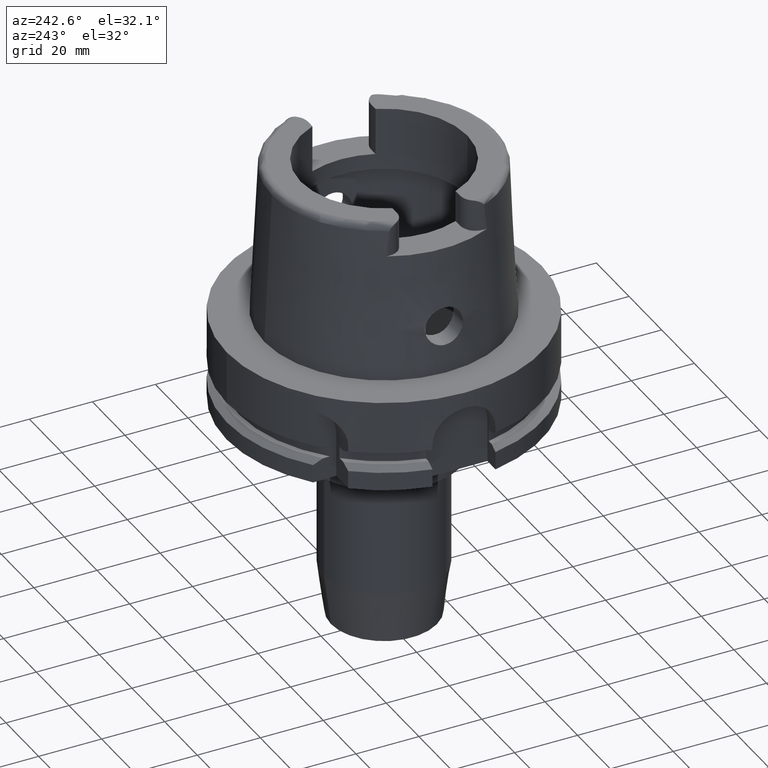
[diagram: clean part render]
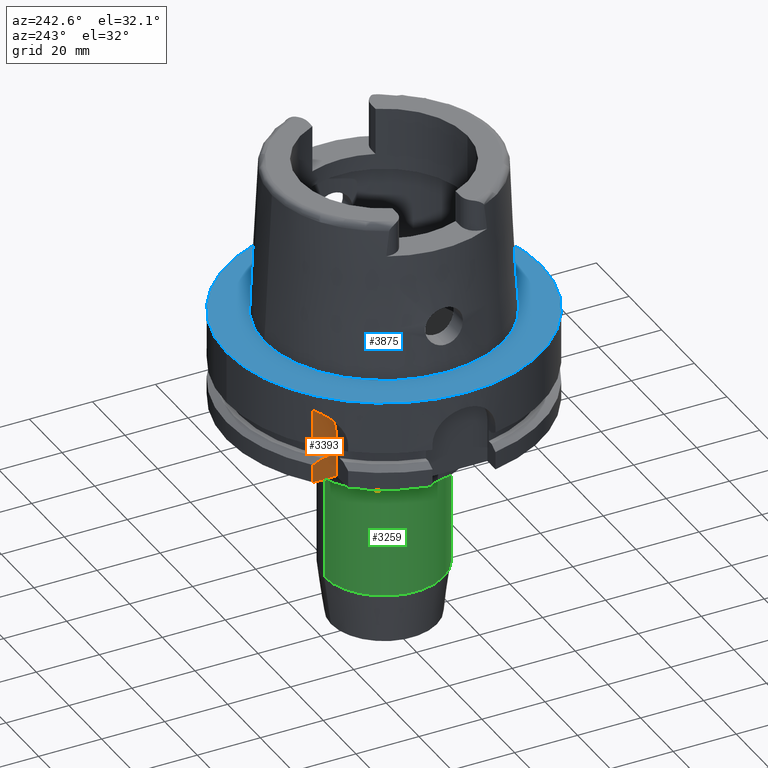
[diagram: same view with three faces highlighted in distinct colors, each labeled with its STEP entity id]
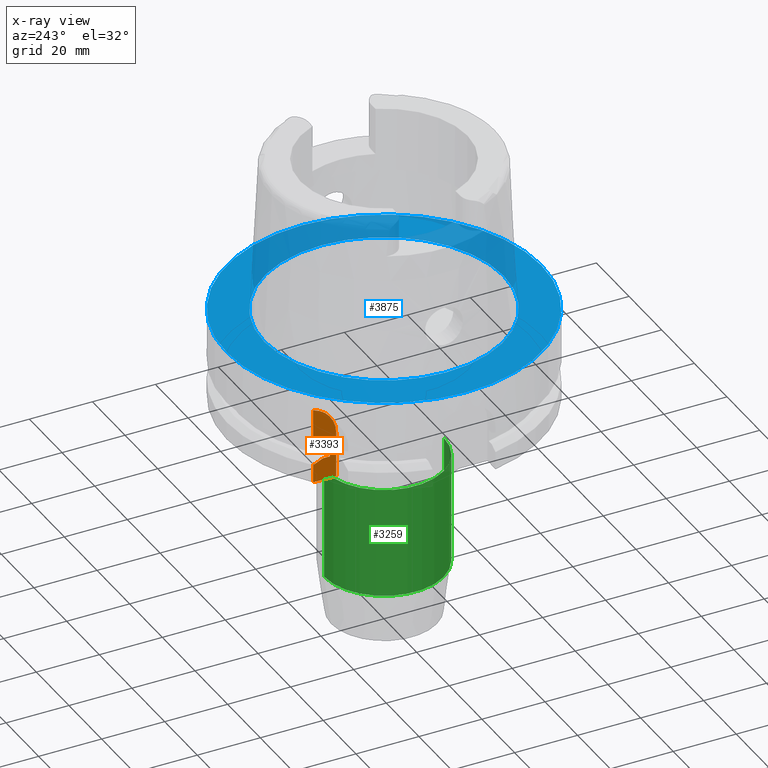
[diagram: x-ray of the same camera — body ghosted, the three highlighted faces saturated]
A machine part, auxiliary view with three faces highlighted in distinct colors.
The next image is the same camera in x-ray (body ghosted, the three faces saturated) — at least one of them is partly hidden behind the body in this view.
Their STEP definitions:

[orange] entity #3393 — the highlighted planar face has unit normal (1, 0, 0).
#1230=DIRECTION('',(4.798503851106E-14,1.E0,0.E0));
#1231=VECTOR('',#1230,7.329756630709E0);
#1232=CARTESIAN_POINT('',(-3.15E1,3.15E1,-2.9E1));
#1233=LINE('',#1232,#1231);
#1237=DIRECTION('',(-4.433903906541E-7,9.999999999999E-1,9.391792532212E-14));
#1238=VECTOR('',#1237,2.194015601002E0);
#1239=CARTESIAN_POINT('',(-3.15E1,3.352238058372E1,-1.8125E1));
#1240=LINE('',#1239,#1238);
#1244=CARTESIAN_POINT('',(-3.150000097281E1,3.571639618472E1,-1.8125E1));
#1245=CARTESIAN_POINT('',(-3.150000097281E1,3.606333863821E1,
-1.797477179943E1));
#1246=CARTESIAN_POINT('',(-3.150000002064E1,3.675646915239E1,
-1.767266204693E1));
#1247=CARTESIAN_POINT('',(-3.149999846856E1,3.779429574907E1,
-1.721518165955E1));
#1248=CARTESIAN_POINT('',(-3.150000355959E1,3.848477495946E1,
-1.690706900025E1));
#1249=CARTESIAN_POINT('',(-3.150000355959E1,3.882975374305E1,
-1.675239179145E1));
#1254=CARTESIAN_POINT('',(-3.15E1,4.15E1,-1.463689785921E1));
#1255=DIRECTION('',(1.E0,0.E0,0.E0));
#1256=DIRECTION('',(0.E0,-2.670243369290E-1,9.636897859206E-1));
#1257=AXIS2_PLACEMENT_3D('',#1254,#1255,#1256);
#1262=DIRECTION('',(6.188494047475E-7,5.020316378014E-7,-9.999999999997E-1));
#1263=VECTOR('',#1262,5.752391791881E0);
#1264=CARTESIAN_POINT('',(-3.150000355986E1,3.882975374283E1,
-2.324760820812E1));
#1265=LINE('',#1264,#1263);
#1427=DIRECTION('',(0.E0,0.E0,1.E0));
#1428=VECTOR('',#1427,1.436310214079E1);
#1429=CARTESIAN_POINT('',(-3.15E1,3.15E1,-2.9E1));
#1430=LINE('',#1429,#1428);
#1458=DIRECTION('',(-3.028823767049E-7,-2.457085509676E-7,-9.999999999999E-1));
#1459=VECTOR('',#1458,1.175239179145E1);
#1460=CARTESIAN_POINT('',(-3.15E1,3.882975663071E1,-5.000000000003E0));
#1461=LINE('',#1460,#1459);
#1578=DIRECTION('',(0.E0,0.E0,-1.E0));
#1579=VECTOR('',#1578,3.75E0);
#1580=CARTESIAN_POINT('',(-3.15E1,3.352238058372E1,-1.8125E1));
#1581=LINE('',#1580,#1579);
#1592=DIRECTION('',(-4.434271693799E-7,9.999999999999E-1,-9.229865077722E-14));
#1593=VECTOR('',#1592,2.194015600297E0);
#1594=CARTESIAN_POINT('',(-3.15E1,3.352238058372E1,-2.1875E1));
#1595=LINE('',#1594,#1593);
#1631=CARTESIAN_POINT('',(-3.150000097289E1,3.571639618402E1,-2.1875E1));
#1632=CARTESIAN_POINT('',(-3.150000097289E1,3.605789002737E1,
-2.202286891912E1));
#1633=CARTESIAN_POINT('',(-3.150000002063E1,3.674380017621E1,
-2.232173054124E1));
#1634=CARTESIAN_POINT('',(-3.149999846845E1,3.778158713267E1,
-2.277929841516E1));
#1635=CARTESIAN_POINT('',(-3.150000355986E1,3.847935690318E1,
-2.309050172011E1));
#1636=CARTESIAN_POINT('',(-3.150000355986E1,3.882975374283E1,
-2.324760820812E1));
#2346=CARTESIAN_POINT('',(-3.15E1,3.15E1,-2.9E1));
#2347=CARTESIAN_POINT('',(-3.15E1,3.882975663071E1,-2.9E1));
#2348=VERTEX_POINT('',#2346);
#2349=VERTEX_POINT('',#2347);
#2372=CARTESIAN_POINT('',(-3.150000355986E1,3.882975374283E1,
-2.324760820812E1));
#2373=VERTEX_POINT('',#2372);
#2374=VERTEX_POINT('',#1631);
#2375=CARTESIAN_POINT('',(-3.15E1,3.352238058372E1,-2.1875E1));
#2376=VERTEX_POINT('',#2375);
#2377=CARTESIAN_POINT('',(-3.15E1,3.352238058372E1,-1.8125E1));
#2378=VERTEX_POINT('',#2377);
#2379=CARTESIAN_POINT('',(-3.150000097281E1,3.571639618472E1,-1.8125E1));
#2380=VERTEX_POINT('',#2379);
#2381=VERTEX_POINT('',#1249);
#2382=CARTESIAN_POINT('',(-3.15E1,3.882975663071E1,-5.000000000003E0));
#2383=VERTEX_POINT('',#2382);
#2384=CARTESIAN_POINT('',(-3.15E1,3.15E1,-1.463689785921E1));
#2385=VERTEX_POINT('',#2384);
#3367=CARTESIAN_POINT('',(-3.15E1,0.E0,0.E0));
#3368=DIRECTION('',(1.E0,0.E0,0.E0));
#3369=DIRECTION('',(0.E0,0.E0,1.E0));
#3370=AXIS2_PLACEMENT_3D('',#3367,#3368,#3369);
#3371=PLANE('',#3370);
#3372=ORIENTED_EDGE('',*,*,#3334,.T.);
#3374=ORIENTED_EDGE('',*,*,#3373,.F.);
#3376=ORIENTED_EDGE('',*,*,#3375,.F.);
#3378=ORIENTED_EDGE('',*,*,#3377,.F.);
#3380=ORIENTED_EDGE('',*,*,#3379,.F.);
#3382=ORIENTED_EDGE('',*,*,#3381,.T.);
#3384=ORIENTED_EDGE('',*,*,#3383,.T.);
#3386=ORIENTED_EDGE('',*,*,#3385,.F.);
#3388=ORIENTED_EDGE('',*,*,#3387,.T.);
#3390=ORIENTED_EDGE('',*,*,#3389,.F.);
#3391=EDGE_LOOP('',(#3372,#3374,#3376,#3378,#3380,#3382,#3384,#3386,#3388,
#3390));
#3392=FACE_OUTER_BOUND('',#3391,.F.);
#1250=B_SPLINE_CURVE_WITH_KNOTS('',3,(#1244,#1245,#1246,#1247,#1248,#1249),
.UNSPECIFIED.,.F.,.F.,(4,1,1,4),(0.E0,3.333333333333E-1,6.666666666667E-1,1.E0),
.UNSPECIFIED.);
#1258=CIRCLE('',#1257,1.E1);
#1637=B_SPLINE_CURVE_WITH_KNOTS('',3,(#1631,#1632,#1633,#1634,#1635,#1636),
.UNSPECIFIED.,.F.,.F.,(4,1,1,4),(0.E0,3.333333333333E-1,6.666666666667E-1,1.E0),
.UNSPECIFIED.);
#3334=EDGE_CURVE('',#2348,#2349,#1233,.T.);
#3373=EDGE_CURVE('',#2373,#2349,#1265,.T.);
#3375=EDGE_CURVE('',#2374,#2373,#1637,.T.);
#3377=EDGE_CURVE('',#2376,#2374,#1595,.T.);
#3379=EDGE_CURVE('',#2378,#2376,#1581,.T.);
#3381=EDGE_CURVE('',#2378,#2380,#1240,.T.);
#3383=EDGE_CURVE('',#2380,#2381,#1250,.T.);
#3385=EDGE_CURVE('',#2383,#2381,#1461,.T.);
#3387=EDGE_CURVE('',#2383,#2385,#1258,.T.);
#3389=EDGE_CURVE('',#2348,#2385,#1430,.T.);
#3393=ADVANCED_FACE('',(#3392),#3371,.F.);

[blue] entity #3875 — the highlighted planar face has unit normal (0, 0, 1).
#1916=CARTESIAN_POINT('',(0.E0,0.E0,0.E0));
#1917=DIRECTION('',(0.E0,0.E0,-1.E0));
#1918=DIRECTION('',(0.E0,-1.E0,0.E0));
#1919=AXIS2_PLACEMENT_3D('',#1916,#1917,#1918);
#1924=CARTESIAN_POINT('',(0.E0,0.E0,0.E0));
#1925=DIRECTION('',(0.E0,0.E0,-1.E0));
#1926=DIRECTION('',(0.E0,1.E0,0.E0));
#1927=AXIS2_PLACEMENT_3D('',#1924,#1925,#1926);
#1932=CARTESIAN_POINT('',(0.E0,0.E0,1.023181539495E-12));
#1933=DIRECTION('',(0.E0,0.E0,1.E0));
#1934=DIRECTION('',(0.E0,-1.E0,0.E0));
#1935=AXIS2_PLACEMENT_3D('',#1932,#1933,#1934);
#1940=CARTESIAN_POINT('',(0.E0,0.E0,1.023181539495E-12));
#1941=DIRECTION('',(0.E0,0.E0,1.E0));
#1942=DIRECTION('',(0.E0,1.E0,0.E0));
#1943=AXIS2_PLACEMENT_3D('',#1940,#1941,#1942);
#2240=CARTESIAN_POINT('',(0.E0,-3.800001658252E1,6.892264536873E-13));
#2241=VERTEX_POINT('',#2240);
#2242=CARTESIAN_POINT('',(0.E0,3.800001658252E1,1.023181539495E-12));
#2243=VERTEX_POINT('',#2242);
#2473=CARTESIAN_POINT('',(0.E0,5.E1,0.E0));
#2474=VERTEX_POINT('',#2473);
#2475=CARTESIAN_POINT('',(0.E0,-5.E1,0.E0));
#2476=VERTEX_POINT('',#2475);
#3862=CARTESIAN_POINT('',(0.E0,0.E0,1.421085471520E-14));
#3863=DIRECTION('',(0.E0,0.E0,1.E0));
#3864=DIRECTION('',(0.E0,1.E0,0.E0));
#3865=AXIS2_PLACEMENT_3D('',#3862,#3863,#3864);
#3866=PLANE('',#3865);
#3867=ORIENTED_EDGE('',*,*,#3627,.T.);
#3868=ORIENTED_EDGE('',*,*,#3736,.T.);
#3869=EDGE_LOOP('',(#3867,#3868));
#3870=FACE_OUTER_BOUND('',#3869,.F.);
#3871=ORIENTED_EDGE('',*,*,#2711,.T.);
#3872=ORIENTED_EDGE('',*,*,#2682,.T.);
#3873=EDGE_LOOP('',(#3871,#3872));
#3874=FACE_BOUND('',#3873,.F.);
#1920=CIRCLE('',#1919,5.E1);
#1928=CIRCLE('',#1927,5.E1);
#1936=CIRCLE('',#1935,3.800001658252E1);
#1944=CIRCLE('',#1943,3.800001658252E1);
#2682=EDGE_CURVE('',#2243,#2241,#1944,.T.);
#2711=EDGE_CURVE('',#2241,#2243,#1936,.T.);
#3627=EDGE_CURVE('',#2476,#2474,#1920,.T.);
#3736=EDGE_CURVE('',#2474,#2476,#1928,.T.);
#3875=ADVANCED_FACE('',(#3870,#3874),#3866,.T.);

[green] entity #3259 — the highlighted cylindrical surface (partial cylindrical patch) has radius 19 mm, axis along (0, 0, 1).
#1064=CARTESIAN_POINT('',(0.E0,0.E0,-8.363494776413E1));
#1065=DIRECTION('',(0.E0,0.E0,1.E0));
#1066=DIRECTION('',(0.E0,1.E0,0.E0));
#1067=AXIS2_PLACEMENT_3D('',#1064,#1065,#1066);
#1079=DIRECTION('',(0.E0,2.241050285010E-14,-1.E0));
#1080=VECTOR('',#1079,3.519342881190E1);
#1081=CARTESIAN_POINT('',(0.E0,-1.9E1,-4.844151895223E1));
#1082=LINE('',#1081,#1080);
#1086=DIRECTION('',(0.E0,-2.241050285010E-14,-1.E0));
#1087=VECTOR('',#1086,3.519342881190E1);
#1088=CARTESIAN_POINT('',(0.E0,1.9E1,-4.844151895223E1));
#1089=LINE('',#1088,#1087);
#1131=CARTESIAN_POINT('',(0.E0,0.E0,-4.844151895223E1));
#1132=DIRECTION('',(0.E0,0.E0,-1.E0));
#1133=DIRECTION('',(0.E0,-1.E0,0.E0));
#1134=AXIS2_PLACEMENT_3D('',#1131,#1132,#1133);
#2330=CARTESIAN_POINT('',(0.E0,1.9E1,-8.363494776413E1));
#2331=VERTEX_POINT('',#2330);
#2332=CARTESIAN_POINT('',(0.E0,-1.9E1,-8.363494776413E1));
#2333=VERTEX_POINT('',#2332);
#2334=CARTESIAN_POINT('',(0.E0,1.9E1,-4.844151895223E1));
#2335=VERTEX_POINT('',#2334);
#2336=CARTESIAN_POINT('',(0.E0,-1.9E1,-4.844151895223E1));
#2337=VERTEX_POINT('',#2336);
#3245=CARTESIAN_POINT('',(0.E0,0.E0,-1.075E2));
#3246=DIRECTION('',(0.E0,0.E0,1.E0));
#3247=DIRECTION('',(0.E0,1.E0,0.E0));
#3248=AXIS2_PLACEMENT_3D('',#3245,#3246,#3247);
#3249=CYLINDRICAL_SURFACE('',#3248,1.9E1);
#3251=ORIENTED_EDGE('',*,*,#3250,.F.);
#3253=ORIENTED_EDGE('',*,*,#3252,.F.);
#3255=ORIENTED_EDGE('',*,*,#3254,.T.);
#3256=ORIENTED_EDGE('',*,*,#3238,.F.);
#3257=EDGE_LOOP('',(#3251,#3253,#3255,#3256));
#3258=FACE_OUTER_BOUND('',#3257,.F.);
#1068=CIRCLE('',#1067,1.9E1);
#1135=CIRCLE('',#1134,1.9E1);
#3238=EDGE_CURVE('',#2331,#2333,#1068,.T.);
#3250=EDGE_CURVE('',#2335,#2331,#1089,.T.);
#3252=EDGE_CURVE('',#2337,#2335,#1135,.T.);
#3254=EDGE_CURVE('',#2337,#2333,#1082,.T.);
#3259=ADVANCED_FACE('',(#3258),#3249,.T.);